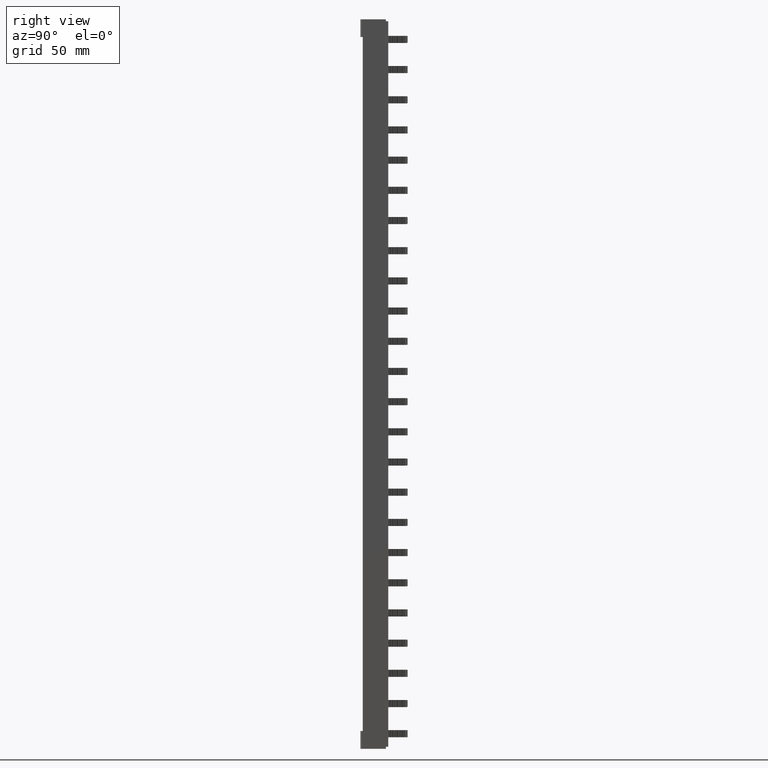
[diagram: clean part render]
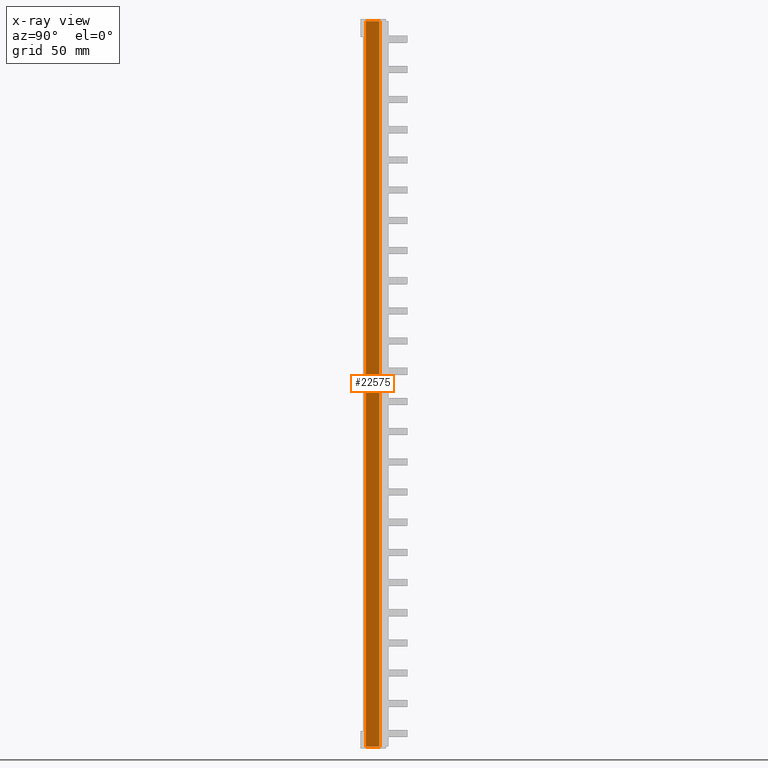
[diagram: x-ray — body ghosted, one internal face saturated and labeled with its STEP entity id]
A machine part, right view, then the same camera in x-ray: the body is ghosted and one INTERNAL B-rep face — a face not visible from any outside direction — is saturated and labeled: STEP entity #22575.
In plain terms, the highlighted planar face has unit normal (-1, 0, 0).
Its self-contained STEP definition (entity closure, byte-faithful):
#4131 = VECTOR ( 'NONE', #26278, 1000.000000000000000 ) ;
#4176 = VECTOR ( 'NONE', #26680, 1000.000000000000000 ) ;
#4185 = VECTOR ( 'NONE', #26641, 1000.000000000000000 ) ;
#4218 = VECTOR ( 'NONE', #26952, 1000.000000000000000 ) ;
#5396 = PLANE ( 'NONE',  #21922 ) ;
#5397 = DIRECTION ( 'NONE',  ( -1.000000000000000000, 0.0000000000000000000, 0.0000000000000000000 ) ) ;
#5402 = CARTESIAN_POINT ( 'NONE',  ( 5.599999999999383200, 1.799999999999940500, 217.7999999999999800 ) ) ;
#5420 = DIRECTION ( 'NONE',  ( 0.0000000000000000000, 0.0000000000000000000, 1.000000000000000000 ) ) ;
#5425 = FACE_OUTER_BOUND ( 'NONE', #23921, .T. ) ;
#5521 = ORIENTED_EDGE ( 'NONE', *, *, #6562, .T. ) ;
#6462 = EDGE_CURVE ( 'NONE', #13268, #13281, #26314, .T. ) ;
#6511 = EDGE_CURVE ( 'NONE', #35594, #35498, #26619, .T. ) ;
#6521 = EDGE_CURVE ( 'NONE', #35498, #13268, #26614, .T. ) ;
#6562 = EDGE_CURVE ( 'NONE', #13281, #35594, #26909, .T. ) ;
#13268 = VERTEX_POINT ( 'NONE', #16178 ) ;
#13281 = VERTEX_POINT ( 'NONE', #16186 ) ;
#16178 = CARTESIAN_POINT ( 'NONE',  ( 5.599999999999383200, 9.799999999999947400, -208.8000000000026300 ) ) ;
#16186 = CARTESIAN_POINT ( 'NONE',  ( 5.599999999999383200, 1.799999999999940500, -208.8000000000031700 ) ) ;
#18746 = CARTESIAN_POINT ( 'NONE',  ( 5.599999999999383200, 9.799999999999947400, 217.7999999999966900 ) ) ;
#18836 = CARTESIAN_POINT ( 'NONE',  ( 5.599999999999383200, 1.799999999999940500, 217.7999999999972300 ) ) ;
#21922 = AXIS2_PLACEMENT_3D ( 'NONE', #5402, #5397, #5420 ) ;
#22575 = ADVANCED_FACE ( 'NONE', ( #5425 ), #5396, .T. ) ;
#23921 = EDGE_LOOP ( 'NONE', ( #30595, #30603, #5521, #30601 ) ) ;
#26278 = DIRECTION ( 'NONE',  ( -0.0000000000000000000, -1.000000000000000000, 0.0000000000000000000 ) ) ;
#26285 = CARTESIAN_POINT ( 'NONE',  ( 5.599999999999383200, 1.799999999999940500, -208.8000000000019700 ) ) ;
#26314 = LINE ( 'NONE', #26285, #4131 ) ;
#26614 = LINE ( 'NONE', #26639, #4185 ) ;
#26619 = LINE ( 'NONE', #26664, #4176 ) ;
#26639 = CARTESIAN_POINT ( 'NONE',  ( 5.599999999999383200, 9.799999999999947400, 217.7999999999999800 ) ) ;
#26641 = DIRECTION ( 'NONE',  ( -0.0000000000000000000, -0.0000000000000000000, -1.000000000000000000 ) ) ;
#26664 = CARTESIAN_POINT ( 'NONE',  ( 5.599999999999383200, 1.799999999999940500, 217.7999999999973100 ) ) ;
#26680 = DIRECTION ( 'NONE',  ( 0.0000000000000000000, 1.000000000000000000, -0.0000000000000000000 ) ) ;
#26909 = LINE ( 'NONE', #26972, #4218 ) ;
#26952 = DIRECTION ( 'NONE',  ( 0.0000000000000000000, 0.0000000000000000000, 1.000000000000000000 ) ) ;
#26972 = CARTESIAN_POINT ( 'NONE',  ( 5.599999999999383200, 1.799999999999940500, 217.7999999999999800 ) ) ;
#30595 = ORIENTED_EDGE ( 'NONE', *, *, #6521, .T. ) ;
#30601 = ORIENTED_EDGE ( 'NONE', *, *, #6511, .T. ) ;
#30603 = ORIENTED_EDGE ( 'NONE', *, *, #6462, .T. ) ;
#35498 = VERTEX_POINT ( 'NONE', #18746 ) ;
#35594 = VERTEX_POINT ( 'NONE', #18836 ) ;